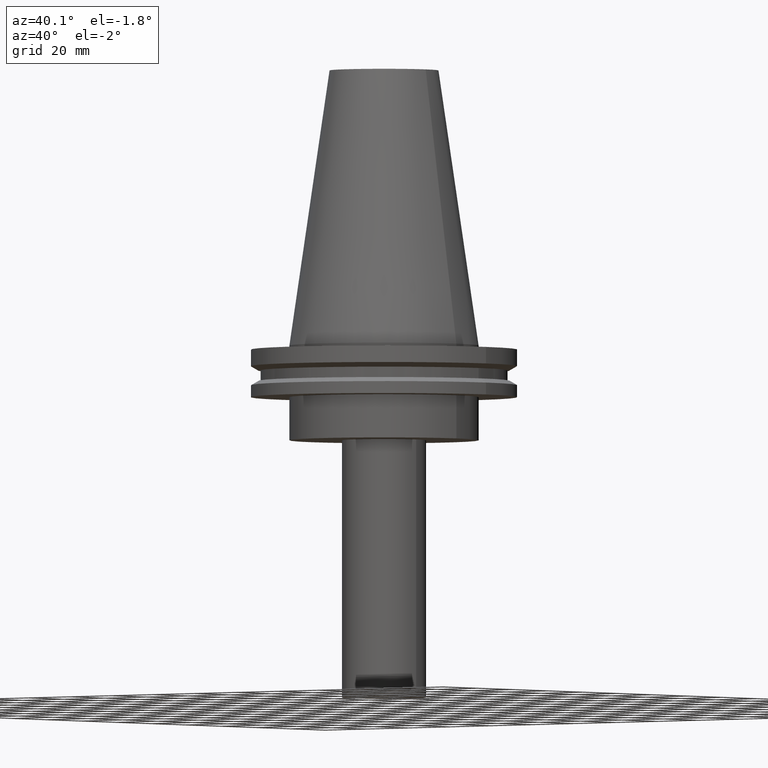
[diagram: clean part render]
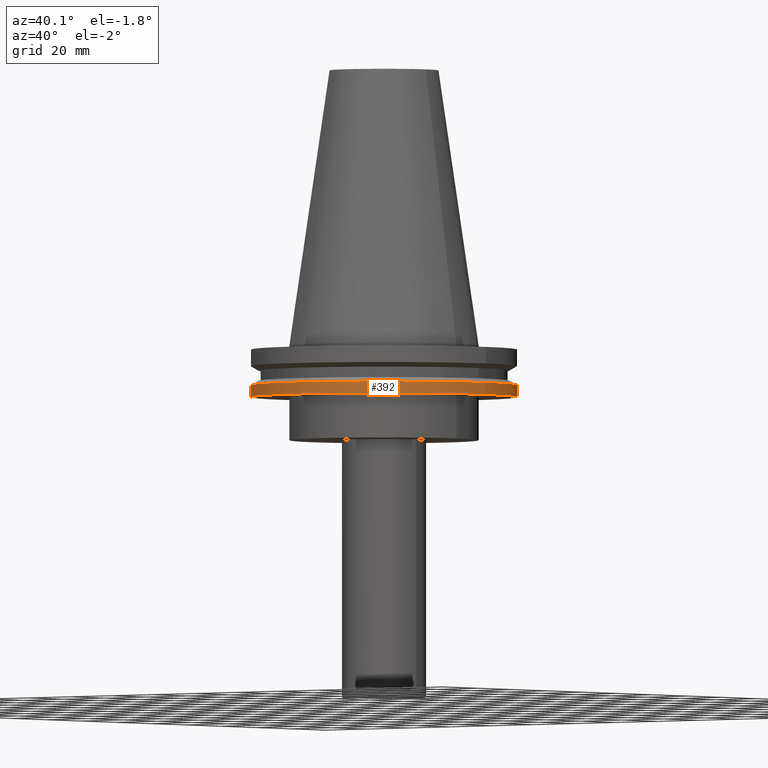
[diagram: same view with one face highlighted and labeled with its STEP entity id]
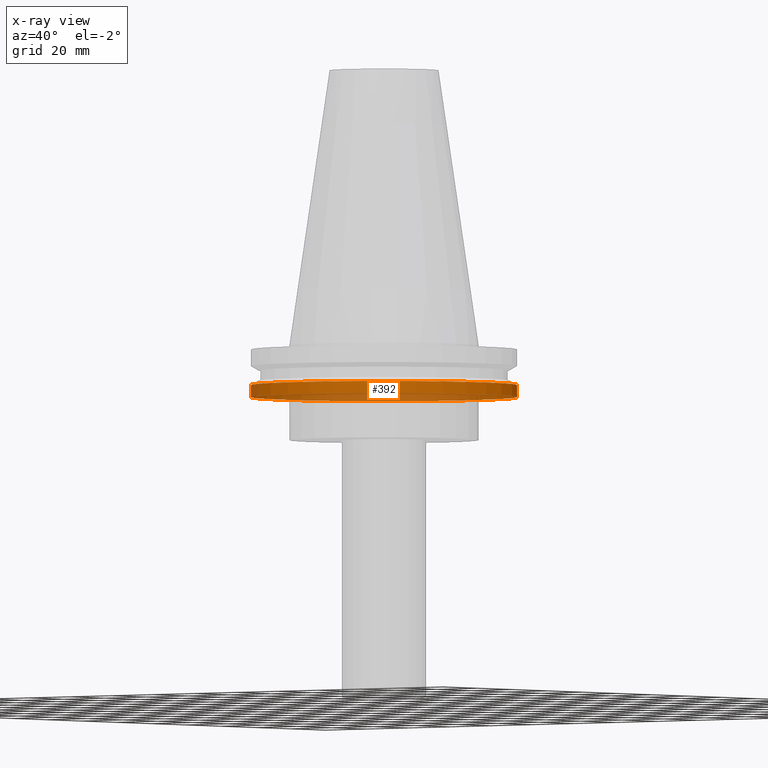
[diagram: x-ray of the same camera — body ghosted, the highlighted face saturated]
A machine part, auxiliary view. The second image highlights one B-rep face of the part: STEP entity #392.
The next image is the same camera in x-ray: the body ghosted, the highlighted face saturated — about 32% of this face is hidden behind the body in this view.
In plain terms, the highlighted cylindrical surface (bore or boss wall) has radius 49.215 mm, axis along (-0, -0, 1).
Its self-contained STEP definition (entity closure, byte-faithful):
#6 = AXIS2_PLACEMENT_3D ( 'NONE', #280, #367, #250 ) ;
#13 = FACE_OUTER_BOUND ( 'NONE', #325, .T. ) ;
#55 = CIRCLE ( 'NONE', #86, 49.21499999999998920 ) ;
#69 = VERTEX_POINT ( 'NONE', #284 ) ;
#71 = CARTESIAN_POINT ( 'NONE',  ( 49.21499999999998920, 0.000000000000000000, -19.04999999999999716 ) ) ;
#72 = DIRECTION ( 'NONE',  ( 1.000000000000000000, 0.000000000000000000, 0.000000000000000000 ) ) ;
#86 = AXIS2_PLACEMENT_3D ( 'NONE', #188, #292, #382 ) ;
#97 = ORIENTED_EDGE ( 'NONE', *, *, #359, .T. ) ;
#105 = CARTESIAN_POINT ( 'NONE',  ( 0.000000000000000000, 0.000000000000000000, 101.5999999999999943 ) ) ;
#108 = FACE_OUTER_BOUND ( 'NONE', #266, .T. ) ;
#110 = AXIS2_PLACEMENT_3D ( 'NONE', #105, #163, #72 ) ;
#136 = CYLINDRICAL_SURFACE ( 'NONE', #110, 49.21499999999998920 ) ;
#163 = DIRECTION ( 'NONE',  ( -0.000000000000000000, -0.000000000000000000, 1.000000000000000000 ) ) ;
#188 = CARTESIAN_POINT ( 'NONE',  ( 0.000000000000000000, 0.000000000000000000, -19.04999999999999716 ) ) ;
#197 = ORIENTED_EDGE ( 'NONE', *, *, #289, .F. ) ;
#243 = CIRCLE ( 'NONE', #6, 49.21499999999998920 ) ;
#250 = DIRECTION ( 'NONE',  ( 1.000000000000000000, 0.000000000000000000, 0.000000000000000000 ) ) ;
#266 = EDGE_LOOP ( 'NONE', ( #197 ) ) ;
#280 = CARTESIAN_POINT ( 'NONE',  ( 0.000000000000000000, 0.000000000000000000, -14.65761014474876944 ) ) ;
#284 = CARTESIAN_POINT ( 'NONE',  ( 49.21499999999998920, 0.000000000000000000, -14.65761014474876944 ) ) ;
#289 = EDGE_CURVE ( 'NONE', #69, #69, #243, .T. ) ;
#292 = DIRECTION ( 'NONE',  ( -0.000000000000000000, -0.000000000000000000, 1.000000000000000000 ) ) ;
#325 = EDGE_LOOP ( 'NONE', ( #97 ) ) ;
#359 = EDGE_CURVE ( 'NONE', #376, #376, #55, .T. ) ;
#367 = DIRECTION ( 'NONE',  ( -0.000000000000000000, -0.000000000000000000, 1.000000000000000000 ) ) ;
#376 = VERTEX_POINT ( 'NONE', #71 ) ;
#382 = DIRECTION ( 'NONE',  ( 1.000000000000000000, 0.000000000000000000, 0.000000000000000000 ) ) ;
#392 = ADVANCED_FACE ( 'NONE', ( #108, #13 ), #136, .T. ) ;